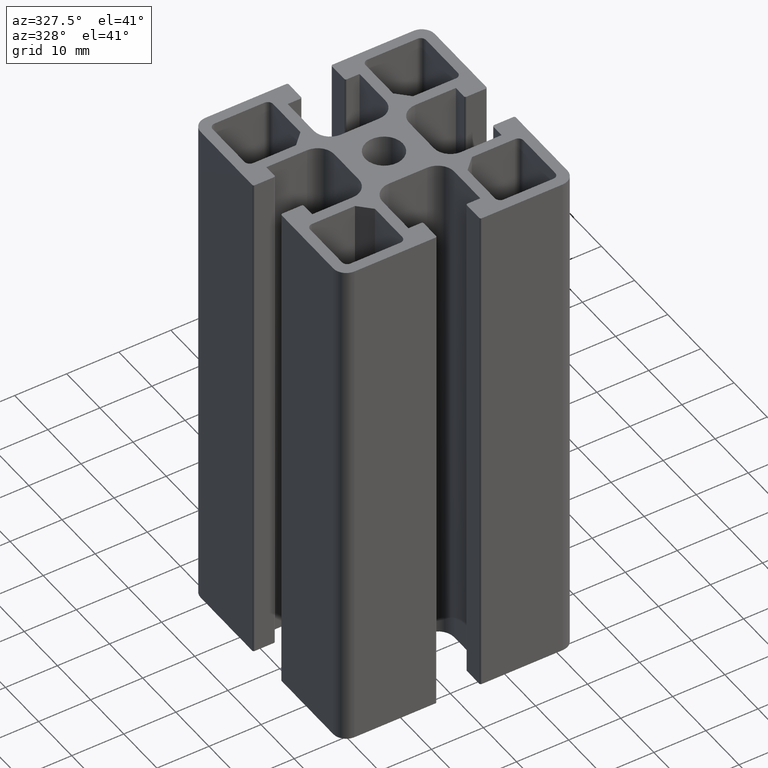
[diagram: clean part render]
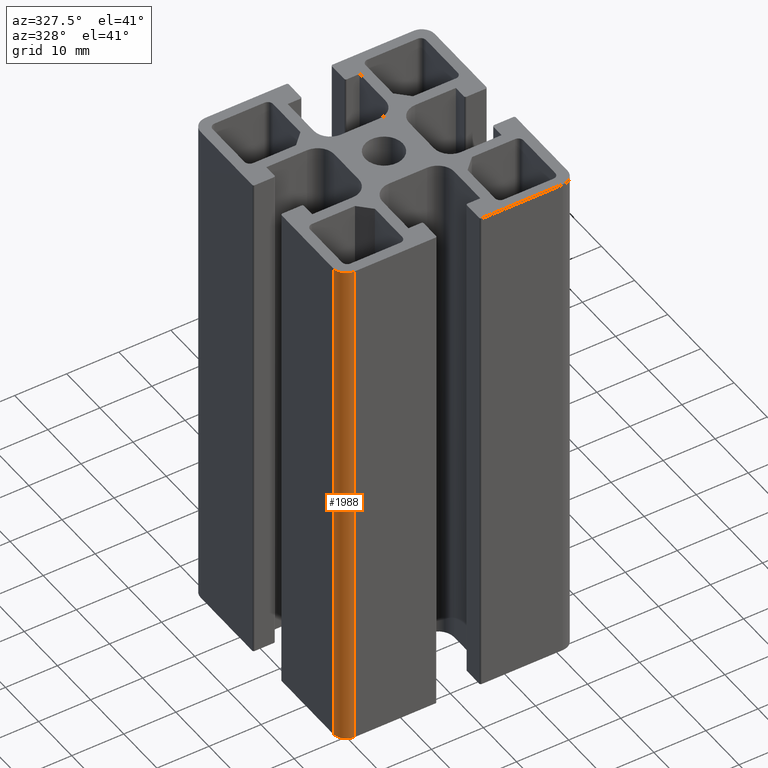
[diagram: same view with one face highlighted and labeled with its STEP entity id]
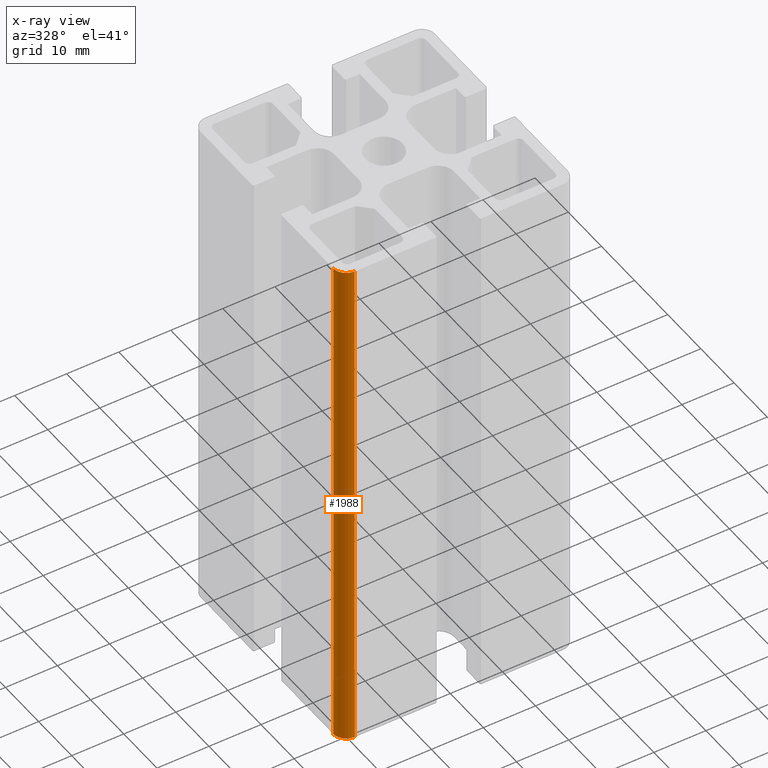
[diagram: x-ray of the same camera — body ghosted, the highlighted face saturated]
A machine part, auxiliary view. The second image highlights one B-rep face of the part: STEP entity #1988.
The next image is the same camera in x-ray: the body ghosted, the highlighted face saturated — about 0% of this face is hidden behind the body in this view.
In plain terms, the highlighted cylindrical surface (edge-blend (fillet) strip) has radius 2.5 mm, axis along (0, 0, 1).
Its self-contained STEP definition (entity closure, byte-faithful):
#101=CIRCLE('',#2162,2.5);
#105=CIRCLE('',#2169,2.5);
#146=CYLINDRICAL_SURFACE('',#2168,2.5);
#241=FACE_OUTER_BOUND('',#346,.T.);
#346=EDGE_LOOP('',(#1717,#1718,#1719,#1720));
#559=LINE('',#3314,#767);
#560=LINE('',#3318,#768);
#767=VECTOR('',#2723,100.);
#768=VECTOR('',#2728,100.);
#960=VERTEX_POINT('',#3298);
#961=VERTEX_POINT('',#3300);
#964=VERTEX_POINT('',#3312);
#965=VERTEX_POINT('',#3316);
#1240=EDGE_CURVE('',#960,#961,#101,.T.);
#1248=EDGE_CURVE('',#960,#964,#559,.T.);
#1249=EDGE_CURVE('',#964,#965,#105,.T.);
#1250=EDGE_CURVE('',#961,#965,#560,.T.);
#1717=ORIENTED_EDGE('',*,*,#1249,.T.);
#1718=ORIENTED_EDGE('',*,*,#1250,.F.);
#1719=ORIENTED_EDGE('',*,*,#1240,.F.);
#1720=ORIENTED_EDGE('',*,*,#1248,.T.);
#1988=ADVANCED_FACE('',(#241),#146,.T.);
#2162=AXIS2_PLACEMENT_3D('',#3301,#2707,#2708);
#2168=AXIS2_PLACEMENT_3D('',#3315,#2724,#2725);
#2169=AXIS2_PLACEMENT_3D('',#3317,#2726,#2727);
#2707=DIRECTION('center_axis',(0.,0.,-1.));
#2708=DIRECTION('ref_axis',(-1.,0.,0.));
#2723=DIRECTION('',(0.,0.,1.));
#2724=DIRECTION('center_axis',(0.,0.,1.));
#2725=DIRECTION('ref_axis',(-1.,0.,0.));
#2726=DIRECTION('center_axis',(0.,0.,-1.));
#2727=DIRECTION('ref_axis',(-1.,0.,0.));
#2728=DIRECTION('',(0.,0.,1.));
#3298=CARTESIAN_POINT('',(-20.,-22.5,0.));
#3300=CARTESIAN_POINT('',(-22.5,-20.,0.));
#3301=CARTESIAN_POINT('Origin',(-20.,-20.,0.));
#3312=CARTESIAN_POINT('',(-20.,-22.5,100.));
#3314=CARTESIAN_POINT('',(-20.,-22.5,0.));
#3315=CARTESIAN_POINT('Origin',(-20.,-20.,0.));
#3316=CARTESIAN_POINT('',(-22.5,-20.,100.));
#3317=CARTESIAN_POINT('Origin',(-20.,-20.,100.));
#3318=CARTESIAN_POINT('',(-22.5,-20.,0.));